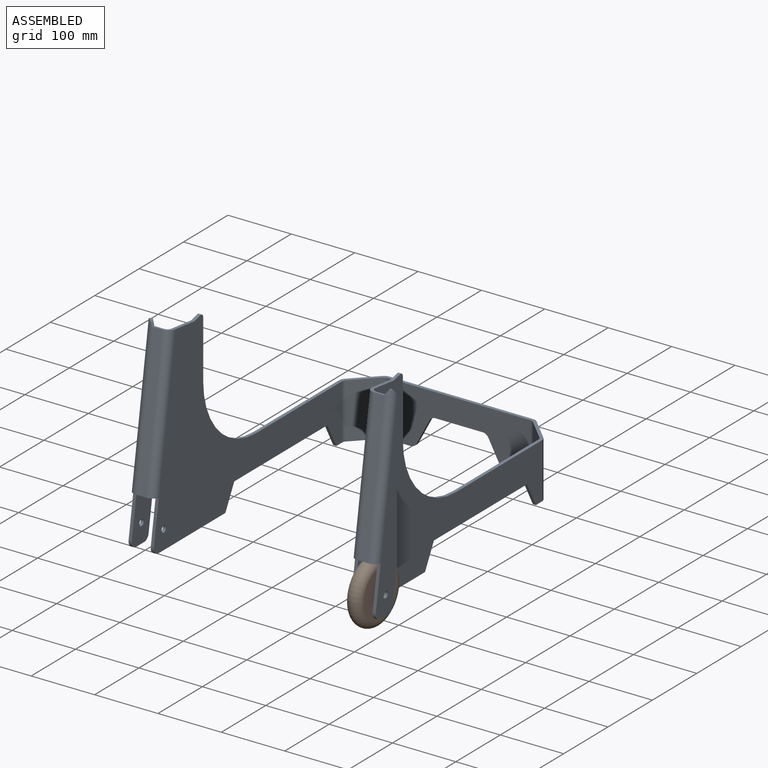
[diagram: assembled view]
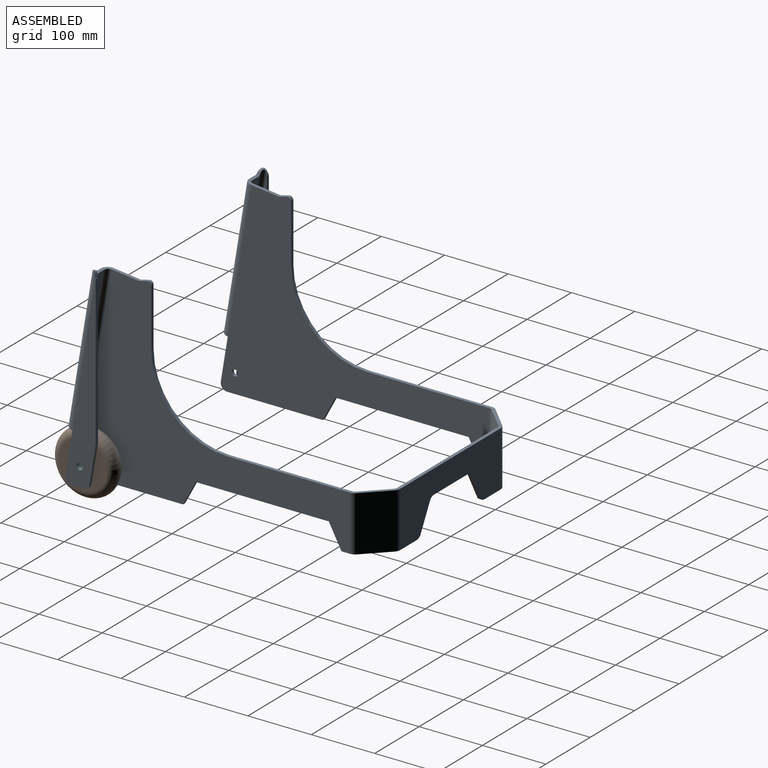
[diagram: assembled view, second angle]
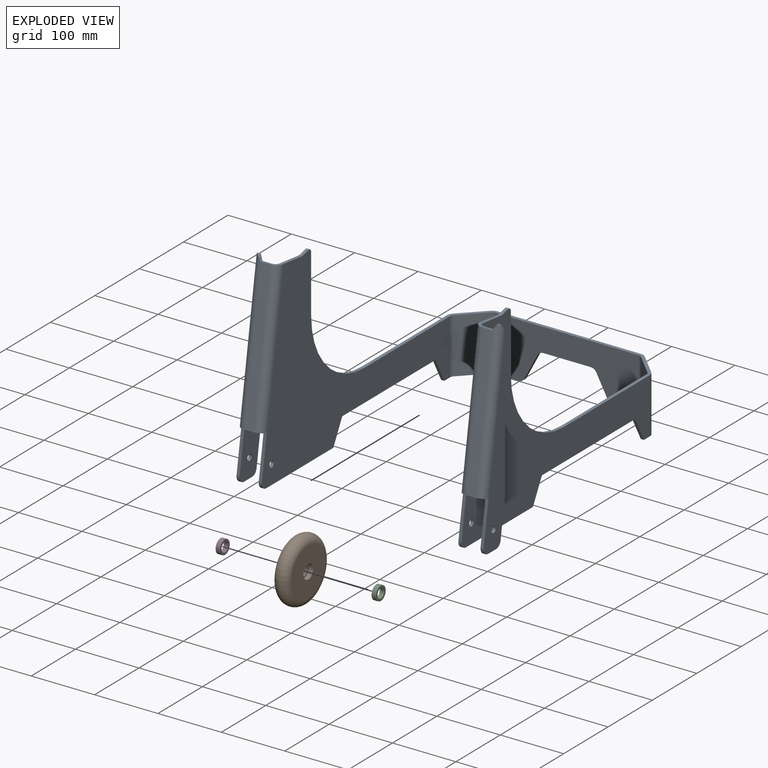
[diagram: exploded view]
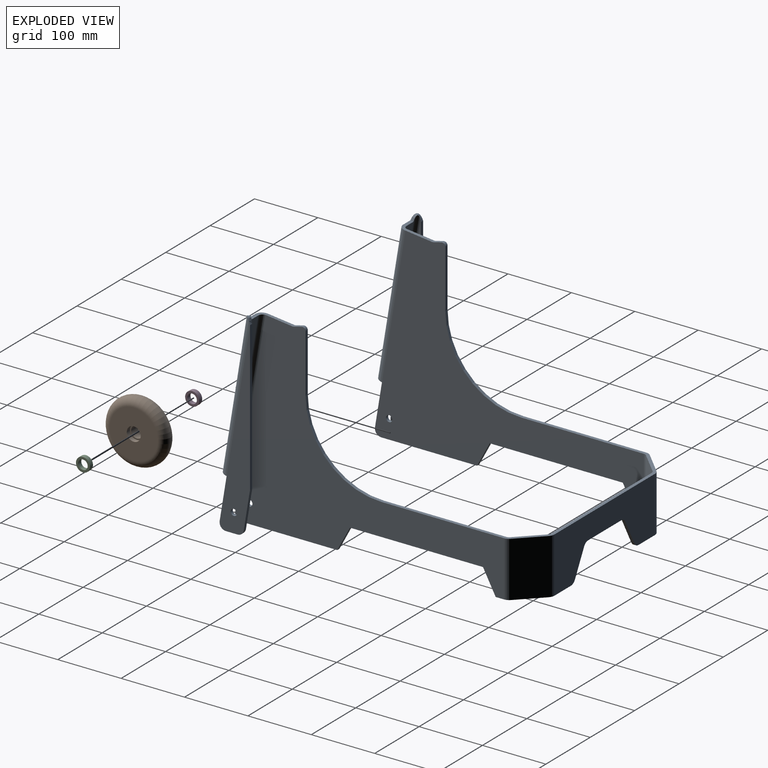
[diagram: exploded view, second angle]
ASSEMBLY  parts=4 mates=5
PART A: 112 faces, bbox 390x471.8x314.5 mm
  f0: plane 37.01x5mm, normal (0,0,-1), area 185.1mm2, adj f6,f7,f9,f34
  f1: plane 226.06x5mm, normal (0,0,1), area 1130.3mm2, adj f6,f7,f33,f83
  f2: plane 37.01x5mm, normal (0,0,-1), area 185.1mm2, adj f6,f7,f10,f84
  f3: plane 39.37x20.86mm, normal (0.88,0,-0.47), area 222.8mm2, adj f6,f7,f8,f10
  f4: plane 74.96x5mm, normal (0,0,-1), area 374.8mm2, adj f6,f7,f8,f11
  f5: plane 39.37x20.86mm, normal (-0.88,0,-0.47), area 222.8mm2, adj f6,f7,f9,f11
  f6: plane 226.06x87.3mm, normal (0,-1,0), area 14059.7mm2, adj f0,f1,f2,f3,f4,f5,f8,f9
  f7: plane 226.06x87.3mm, normal (0,1,0), area 14059.7mm2, adj f0,f1,f2,f3,f4,f5,f8,f9
  f8: cylinder r=10mm len=8.84mm, axis (0,1,0), area 54.2mm2, adj f3,f4,f6,f7
  f9: cylinder r=10mm len=8.84mm, axis (0,1,0), area 54.2mm2, adj f0,f5,f6,f7
  f10: cylinder r=10mm len=8.84mm, axis (0,1,0), area 54.2mm2, adj f2,f3,f6,f7
  f11: cylinder r=10mm len=8.84mm, axis (0,1,0), area 54.2mm2, adj f4,f5,f6,f7
  f12: cylinder r=5mm len=5mm, axis (-1,0,0), area 9mm2, adj f13,f24,f25,f26
  f13: plane 12.9x5mm, normal (0,-0.24,0.97), area 66.5mm2, adj f12,f14,f25,f26
  f14: cylinder r=5mm len=6.21mm, axis (-1,0,0), area 45.4mm2, adj f13,f15,f25,f26
  f15: plane 91.3x5mm, normal (0,1,0), area 456.5mm2, adj f14,f25,f26,f27
  f16: plane 193.03x5mm, normal (0,0,1), area 965.1mm2, adj f25,f26,f27,f37
  f17: plane 13.03x5mm, normal (0,0,-1), area 65.1mm2, adj f18,f25,f26,f38
  f18: plane 37.3x20mm, normal (0,-0.88,-0.47), area 211.6mm2, adj f17,f19,f25,f26
  f19: plane 210x5mm, normal (0,0,-1), area 1050mm2, adj f18,f20,f25,f26
  f20: plane 37.3x20mm, normal (0,0.88,-0.47), area 211.6mm2, adj f19,f21,f25,f26
  f21: plane 151.13x5mm, normal (0,0,-1), area 755.7mm2, adj f20,f25,f26,f28
  f22: plane 67.1x11mm, normal (0,-0.99,0.16), area 340mm2, adj f25,f26,f28,f59
  f23: cylinder r=5mm len=10mm, axis (-1,0,0), area 157.1mm2, adj f25,f26
  f24: plane 42x5mm, normal (0,0.12,0.99), area 211.4mm2, adj f12,f25,f26,f58
  f25: plane 424.16x305mm, normal (-1,0,0), area 48374mm2, adj f12,f13,f14,f15,f16,f17,f18,f19
  f26: plane 424.16x305mm, normal (1,0,0), area 48374mm2, adj f12,f13,f14,f15,f16,f17,f18,f19
  f27: cylinder r=120mm len=120mm, axis (1,0,0), area 942.5mm2, adj f15,f16,f25,f26
  f28: cylinder r=10mm len=11.62mm, axis (-1,0,0), area 86.7mm2, adj f21,f22,f25,f26
  f29: plane 38.51x38.51mm, normal (0,0,-1), area 247.3mm2, adj f31,f32,f34,f38
  f30: plane 38.51x38.51mm, normal (0,0,1), area 247.3mm2, adj f31,f32,f33,f37
  f31: plane 87.3x34.97mm, normal (-0.71,-0.71,0), area 4317.4mm2, adj f29,f30,f36,f40
  f32: plane 87.3x34.97mm, normal (0.71,0.71,0), area 4317.4mm2, adj f29,f30,f35,f39
  f33: plane 8.49x7.05mm, normal (0,0,1), area 37.3mm2, adj f1,f30,f35,f36
  f34: plane 8.49x7.05mm, normal (0,0,-1), area 37.3mm2, adj f0,f29,f35,f36
  f35: cylinder r=12mm len=87.3mm, axis (0,0,1), area 822.8mm2, adj f7,f32,f33,f34
  f36: cylinder r=7mm len=87.3mm, axis (0,0,1), area 480mm2, adj f6,f31,f33,f34
  f37: plane 8.49x7.05mm, normal (0,0,1), area 37.3mm2, adj f16,f30,f39,f40
  f38: plane 8.49x7.05mm, normal (0,0,-1), area 37.3mm2, adj f17,f29,f39,f40
  f39: cylinder r=12mm len=87.3mm, axis (0,0,1), area 822.8mm2, adj f26,f32,f37,f38
  f40: cylinder r=7mm len=87.3mm, axis (0,0,1), area 480mm2, adj f25,f31,f37,f38
  f41: plane 16x4.93mm, normal (0,0.16,0.99), area 80mm2, adj f43,f44,f55,f58
  f42: plane 16x4.93mm, normal (0,-0.16,-0.99), area 80mm2, adj f43,f44,f54,f59
  f43: plane 225.15x36.91mm, normal (0,-0.99,0.16), area 3650.5mm2, adj f41,f42,f56,f60
  f44: plane 225.15x36.91mm, normal (0,0.99,-0.16), area 3650.5mm2, adj f41,f42,f57,f61
  f45: plane 67.1x11mm, normal (0,-0.99,0.16), area 340mm2, adj f50,f51,f53,f54
  f46: plane 18.24x5mm, normal (0,0,-1), area 91.2mm2, adj f50,f51,f52,f53
  f47: plane 60.59x9.93mm, normal (0,0.99,-0.16), area 307mm2, adj f49,f50,f51,f52
  f48: cylinder r=5mm len=10mm, axis (1,0,0), area 157.1mm2, adj f50,f51
  f49: plane 234.89x5mm, normal (0,1,0), area 1174.5mm2, adj f47,f50,f51,f55
  f50: plane 303.87x48.04mm, normal (1,0,0), area 7054.4mm2, adj f45,f46,f47,f48,f49,f52,f53,f56
  f51: plane 303.87x48.04mm, normal (-1,0,0), area 7054.4mm2, adj f45,f46,f47,f48,f49,f52,f53,f57
  f52: cylinder r=10mm len=9.87mm, axis (-1,0,0), area 70.4mm2, adj f46,f47,f50,f51
  f53: cylinder r=10mm len=11.62mm, axis (1,0,0), area 86.7mm2, adj f45,f46,f50,f51
  f54: plane 12x11.84mm, normal (0,-0.16,-0.99), area 74.6mm2, adj f42,f45,f56,f57
  f55: bspline ~12x11.84mm, area 121.1mm2, adj f41,f49,f56,f57
  f56: cylinder r=12mm len=235.83mm, axis (0,-0.16,-0.99), area 4410.7mm2, adj f43,f50,f54,f55
  f57: cylinder r=7mm len=235.01mm, axis (0,-0.16,-0.99), area 2572.9mm2, adj f44,f51,f54,f55
  f58: bspline ~12.03x12mm, area 74.4mm2, adj f24,f41,f60,f61
  f59: plane 12x11.84mm, normal (0,-0.16,-0.99), area 74.6mm2, adj f22,f42,f60,f61
  f60: cylinder r=12mm len=228.23mm, axis (0,0.16,0.99), area 4310.1mm2, adj f25,f43,f58,f59
  f61: cylinder r=7mm len=227.42mm, axis (0,0.16,0.99), area 2514.2mm2, adj f26,f44,f58,f59
  f62: plane 12.9x5mm, normal (0,-0.24,0.97), area 66.5mm2, adj f63,f74,f75,f76
  f63: cylinder r=5mm len=5mm, axis (1,0,0), area 9mm2, adj f62,f64,f75,f76
  f64: plane 42x5mm, normal (0,0.12,0.99), area 211.4mm2, adj f63,f75,f76,f109
  f65: plane 67.1x11mm, normal (0,-0.99,0.16), area 340mm2, adj f75,f76,f78,f108
  f66: plane 151.13x5mm, normal (0,0,-1), area 755.7mm2, adj f67,f75,f76,f78
  f67: plane 37.3x20mm, normal (0,0.88,-0.47), area 211.6mm2, adj f66,f68,f75,f76
  f68: plane 210x5mm, normal (0,0,-1), area 1050mm2, adj f67,f69,f75,f76
  f69: plane 37.3x20mm, normal (0,-0.88,-0.47), area 211.6mm2, adj f68,f70,f75,f76
  f70: plane 13.03x5mm, normal (0,0,-1), area 65.1mm2, adj f69,f75,f76,f88
  f71: plane 193.03x5mm, normal (0,0,1), area 965.1mm2, adj f75,f76,f77,f87
  f72: plane 91.3x5mm, normal (0,1,0), area 456.5mm2, adj f74,f75,f76,f77
  f73: cylinder r=5mm len=10mm, axis (1,0,0), area 157.1mm2, adj f75,f76
  f74: cylinder r=5mm len=6.21mm, axis (1,0,0), area 45.4mm2, adj f62,f72,f75,f76
  f75: plane 424.16x305mm, normal (1,0,0), area 48374mm2, adj f62,f63,f64,f65,f66,f67,f68,f69
  f76: plane 424.16x305mm, normal (-1,0,0), area 48374mm2, adj f62,f63,f64,f65,f66,f67,f68,f69
  f77: cylinder r=120mm len=120mm, axis (-1,0,0), area 942.5mm2, adj f71,f72,f75,f76
  f78: cylinder r=10mm len=11.62mm, axis (-1,0,0), area 86.7mm2, adj f65,f66,f75,f76
  f79: plane 38.51x38.51mm, normal (0,0,-1), area 247.3mm2, adj f81,f82,f84,f88
  f80: plane 38.51x38.51mm, normal (0,0,1), area 247.3mm2, adj f81,f82,f83,f87
  f81: plane 87.3x34.97mm, normal (0.71,-0.71,0), area 4317.4mm2, adj f79,f80,f86,f90
  f82: plane 87.3x34.97mm, normal (-0.71,0.71,0), area 4317.4mm2, adj f79,f80,f85,f89
  f83: plane 8.49x7.05mm, normal (0,0,1), area 37.3mm2, adj f1,f80,f85,f86
  f84: plane 8.49x7.05mm, normal (0,0,-1), area 37.3mm2, adj f2,f79,f85,f86
  f85: cylinder r=12mm len=87.3mm, axis (0,0,1), area 822.8mm2, adj f7,f82,f83,f84
  f86: cylinder r=7mm len=87.3mm, axis (0,0,1), area 480mm2, adj f6,f81,f83,f84
  f87: plane 8.49x7.05mm, normal (0,0,1), area 37.3mm2, adj f71,f80,f89,f90
  f88: plane 8.49x7.05mm, normal (0,0,-1), area 37.3mm2, adj f70,f79,f89,f90
  f89: cylinder r=12mm len=87.3mm, axis (0,0,1), area 822.8mm2, adj f76,f82,f87,f88
  f90: cylinder r=7mm len=87.3mm, axis (0,0,1), area 480mm2, adj f75,f81,f87,f88
  f91: plane 16x4.93mm, normal (0,0.16,0.99), area 80mm2, adj f93,f94,f104,f109
  f92: plane 16x4.93mm, normal (0,-0.16,-0.99), area 80mm2, adj f93,f94,f105,f108
  f93: plane 225.15x36.91mm, normal (0,-0.99,0.16), area 3650.5mm2, adj f91,f92,f106,f110
  f94: plane 225.15x36.91mm, normal (0,0.99,-0.16), area 3650.5mm2, adj f91,f92,f107,f111
  f95: plane 60.59x9.93mm, normal (0,0.99,-0.16), area 307mm2, adj f99,f100,f101,f103
  f96: plane 18.24x5mm, normal (0,0,-1), area 91.2mm2, adj f100,f101,f102,f103
  f97: plane 67.1x11mm, normal (0,-0.99,0.16), area 340mm2, adj f100,f101,f102,f105
  f98: cylinder r=5mm len=10mm, axis (-1,0,0), area 157.1mm2, adj f100,f101
  f99: plane 234.89x5mm, normal (0,1,0), area 1174.5mm2, adj f95,f100,f101,f104
  f100: plane 303.87x48.04mm, normal (-1,0,0), area 7054.4mm2, adj f95,f96,f97,f98,f99,f102,f103,f106
  f101: plane 303.87x48.04mm, normal (1,0,0), area 7054.4mm2, adj f95,f96,f97,f98,f99,f102,f103,f107
  f102: cylinder r=10mm len=11.62mm, axis (-1,0,0), area 86.7mm2, adj f96,f97,f100,f101
  f103: cylinder r=10mm len=9.87mm, axis (1,0,0), area 70.4mm2, adj f95,f96,f100,f101
  f104: bspline ~12x11.84mm, area 121.1mm2, adj f91,f99,f106,f107
  f105: plane 12x11.84mm, normal (0,-0.16,-0.99), area 74.6mm2, adj f92,f97,f106,f107
  f106: cylinder r=12mm len=235.83mm, axis (0,0.16,0.99), area 4410.7mm2, adj f93,f100,f104,f105
  f107: cylinder r=7mm len=235.01mm, axis (0,0.16,0.99), area 2572.9mm2, adj f94,f101,f104,f105
  f108: plane 12x11.84mm, normal (0,-0.16,-0.99), area 74.6mm2, adj f65,f92,f110,f111
  f109: bspline ~12.03x12mm, area 75mm2, adj f64,f91,f110,f111
  f110: cylinder r=12mm len=228.23mm, axis (0,-0.16,-0.99), area 4310.1mm2, adj f75,f93,f108,f109
  f111: cylinder r=7mm len=227.42mm, axis (0,-0.16,-0.99), area 2514.2mm2, adj f76,f94,f108,f109
PART B: 8 faces, bbox 108.2x24x108.2 mm
  f0: torus R=38mm, axis (0,-1,0), area 10810.6mm2, adj f1,f7
  f1: plane 76x76mm, normal (0,-1,0), area 4156.3mm2, adj f0,f2
  f2: cylinder r=11mm len=22mm, axis (0,-1,0), area 483.8mm2, adj f1,f3
  f3: plane 22x22mm, normal (0,-1,0), area 125.7mm2, adj f2,f4
  f4: cylinder r=9mm len=18mm, axis (0,-1,0), area 565.5mm2, adj f3,f5
  f5: plane 22x22mm, normal (0,1,0), area 125.7mm2, adj f4,f6
  f6: cylinder r=11mm len=22mm, axis (0,-1,0), area 483.8mm2, adj f5,f7
  f7: plane 76x76mm, normal (0,1,0), area 4156.3mm2, adj f0,f6
PART C: 4 faces, bbox 22x7x22 mm
  f0: cylinder r=7.5mm len=15mm, axis (0,1,0), area 329.9mm2, adj f2,f3
  f1: cylinder r=11mm len=22mm, axis (0,1,0), area 483.8mm2, adj f2,f3
  f2: plane 22x22mm, normal (0,-1,0), area 203.4mm2, adj f0,f1
  f3: plane 22x22mm, normal (0,1,0), area 203.4mm2, adj f0,f1
PART D: same geometry as C
PLACE A t=(-87.52,68.29,108.23)mm
PLACE B rot(axis=(0,0,-1),90deg) t=(87.88,-140.45,138.23)mm
PLACE C rot(axis=(0.71,-0.71,0),180deg) t=(92.88,-140.45,138.23)mm
PLACE D rot(axis=(0,0,-1),90deg) t=(82.88,-140.45,138.23)mm
MATE fastened B.f0 <-> C.f1  axis (1,0,0) through (92.88,-140.45,138.23)mm
MATE cylindrical D.f1 <-> B.f0  axis (1,0,0) through (79.38,-140.45,138.23)mm
MATE cylindrical C.f0 <-> A.f48  axis (-1,0,0) through (96.38,-140.45,138.23)mm
MATE fastened B.f0 <-> D.f0  axis (-1,0,0) through (82.88,-140.45,138.23)mm
MATE cylindrical C.f1 <-> B.f0  axis (-1,0,0) through (92.88,-140.45,138.23)mm
